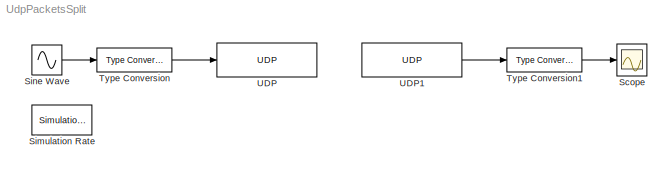
MODEL UdpPacketsSplit
KIND model
BLOCK [Scope] Scope
  DataFormat = StructureWithTime
  Floating = off
  NumInputPorts = 1
  Ports = [1]
  SID = 5
  SampleTime = 0
  YMax = 2
  YMin = -2
BLOCK [Reference] Simulation Rate  REF=UAVdesign_net/Hardware/Simulation Rate
  Ports = []
  SID = 6
  SimSampleTime = 1/100
  SourceBlock = UAVdesign_net/Hardware/Simulation Rate
  SourceType = SimulationRate
BLOCK [Sin] Sine Wave
  Frequency = 2*pi
  Ports = [0, 1]
  SID = 2
  SampleTime = 0
BLOCK [Reference] Type Conversion  REF=UAVdesign_net/Hardware/Type Conversion
  Ports = [1, 1]
  SID = 3
  SourceBlock = UAVdesign_net/Hardware/Type Conversion
  SourceType = TypeConversion
  indim = 1
  intype = double
  outdim = 8
  outtype = uint8
  signextend = off
BLOCK [Reference] Type Conversion1  REF=UAVdesign_net/Hardware/Type Conversion
  Ports = [1, 1]
  SID = 4
  SourceBlock = UAVdesign_net/Hardware/Type Conversion
  SourceType = TypeConversion
  indim = 8
  intype = uint8
  outdim = 1
  outtype = double
  signextend = off
BLOCK [Reference] UDP  REF=UAVdesign_net/Hardware/UDP
  Ports = [1]
  SID = 1
  SourceBlock = UAVdesign_net/Hardware/UDP
  SourceType = UDPPort
  handshake = off
  host = 'localhost'
  local_port = 60400
  num_packets_overrun = off
  num_packets_received = off
  receive = 8
  remote_port = 60500
  rx_enable = off
  st = -1
  timeout = 0
  tx_enable = on
BLOCK [Reference] UDP1  REF=UAVdesign_net/Hardware/UDP
  Ports = [0, 1]
  SID = 7
  SourceBlock = UAVdesign_net/Hardware/UDP
  SourceType = UDPPort
  handshake = off
  host = 'localhost'
  local_port = 60500
  num_packets_overrun = off
  num_packets_received = off
  receive = 8
  remote_port = 60200
  rx_enable = on
  st = -1
  timeout = 0
  tx_enable = off
LINE Sine Wave:1 -> Type Conversion:1
LINE Type Conversion1:1 -> Scope:1
LINE Type Conversion:1 -> UDP:1
LINE UDP1:1 -> Type Conversion1:1
